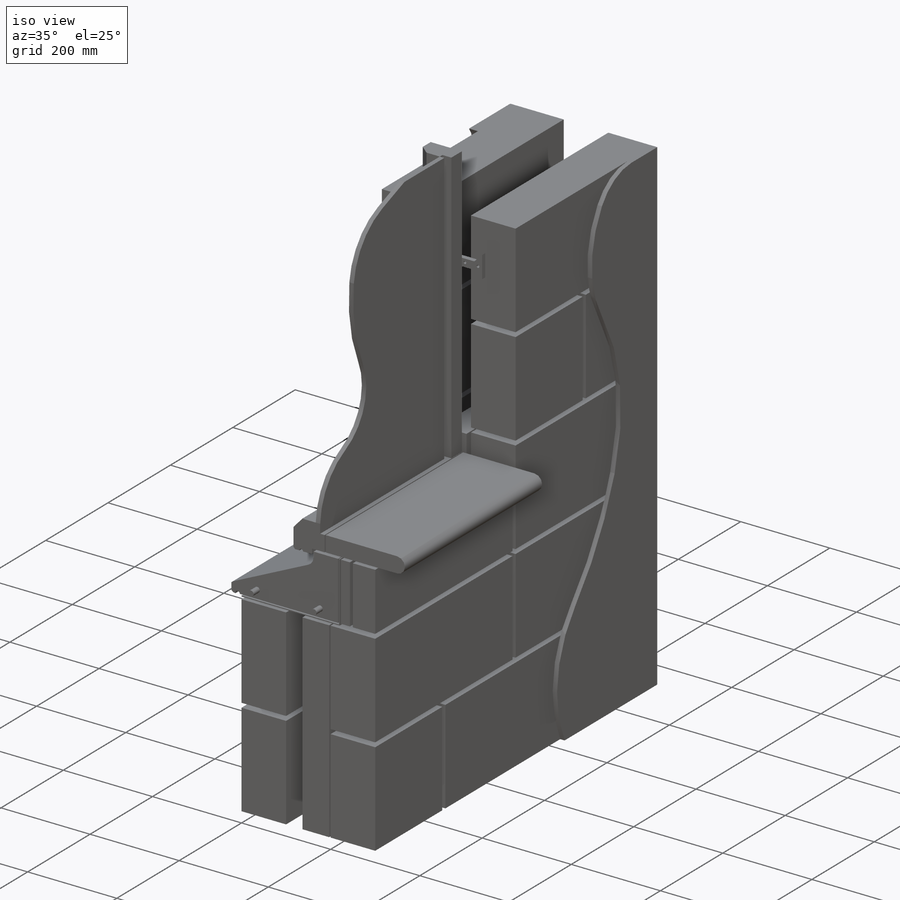
[diagram: iso view]
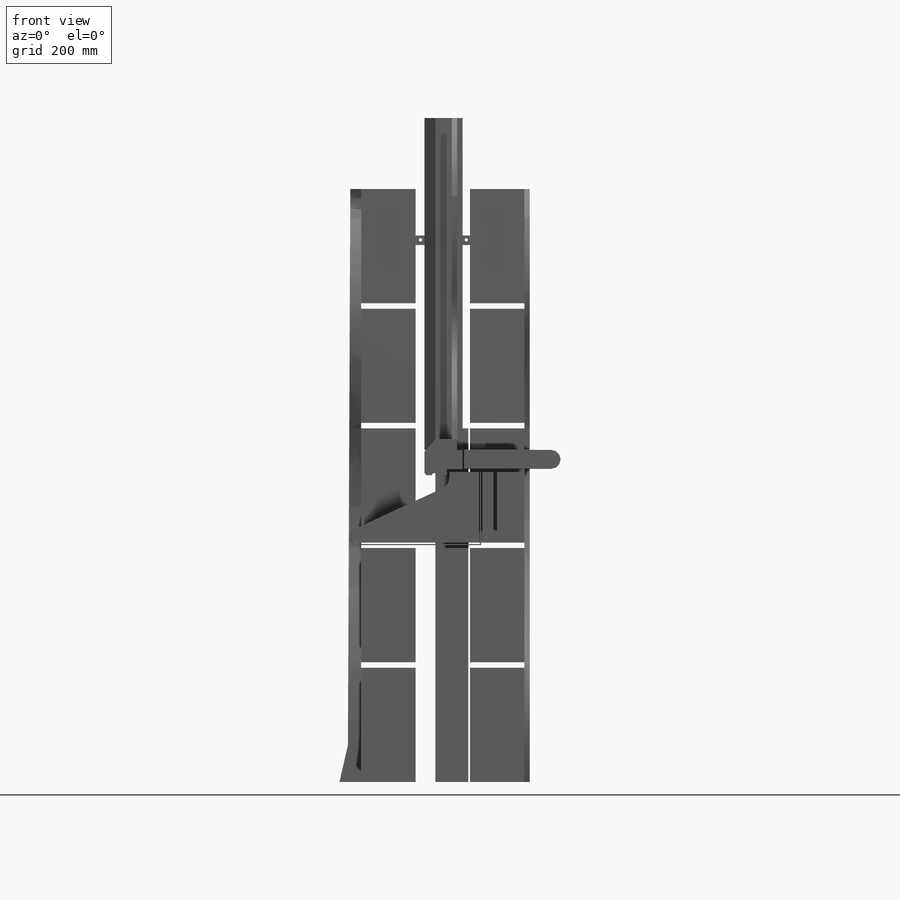
[diagram: front view]
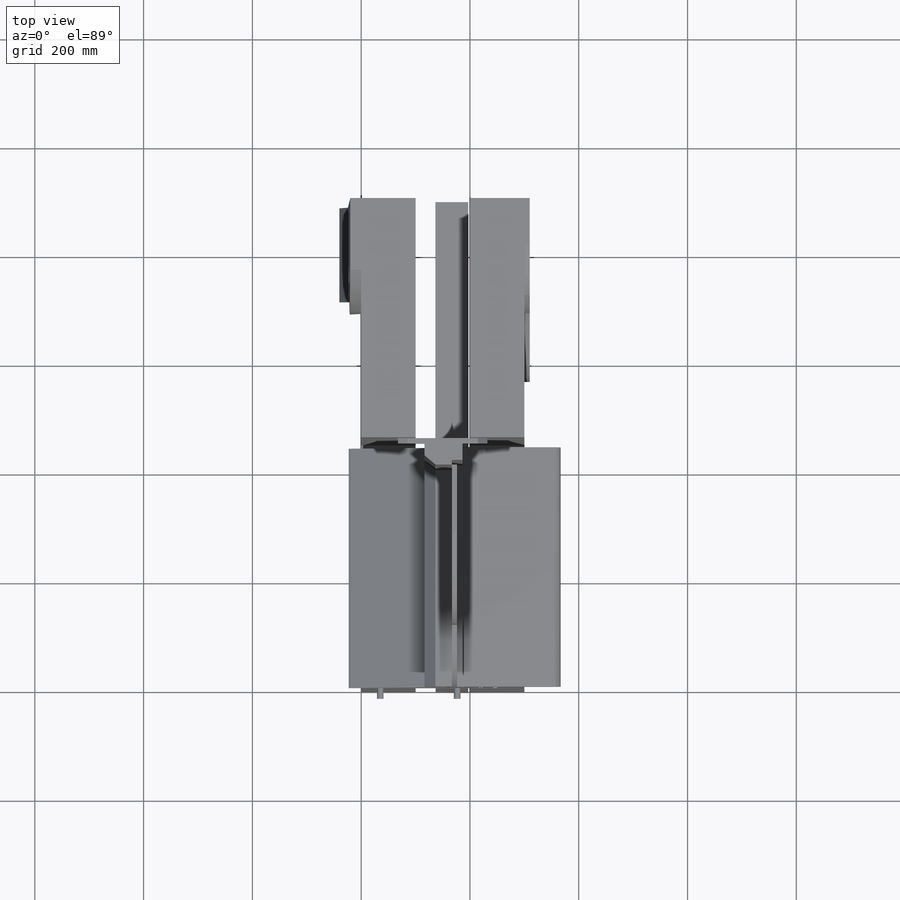
[diagram: top view]
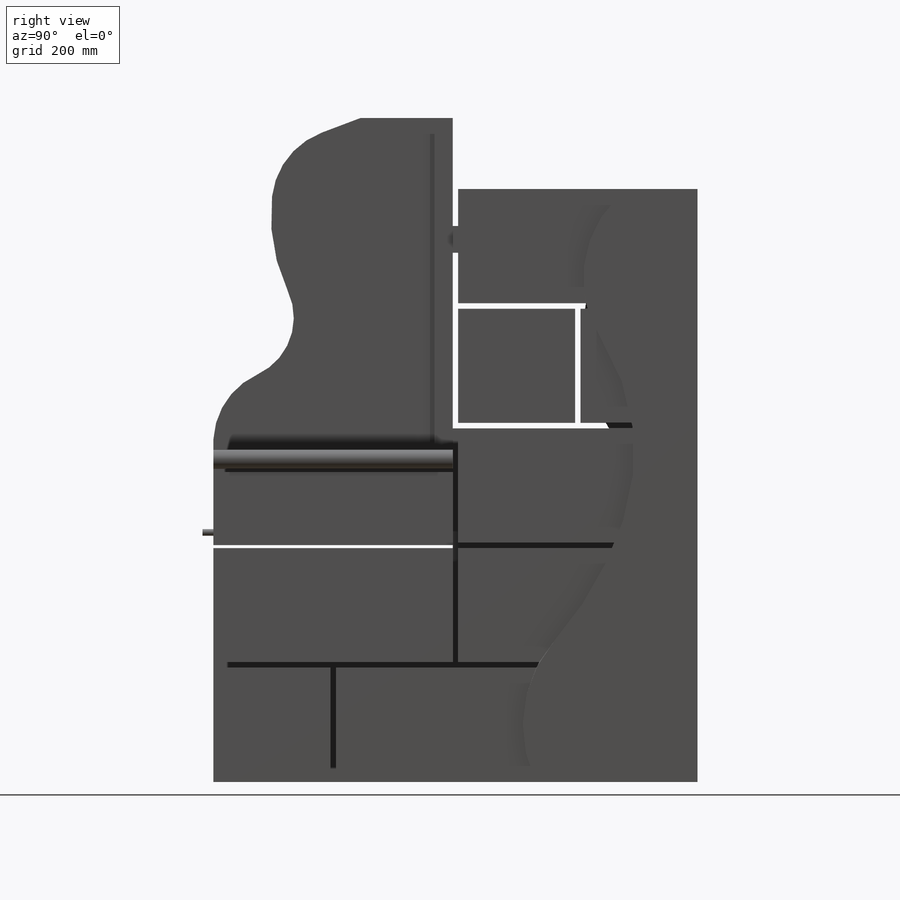
[diagram: right view]
SOLIDWORKS PART (.sldprt)
format: sldprt  version: not decoded by parser v0  size: 900,096 bytes
history: native  units: mm
features: sketch x29, extrude x27, cut_extrude x2, material x1, plane x1 (+15 scaffold rows collapsed)
feature tree (75):
  scaffold x15  (default folders/planes/origin — collapsed)
  material  "Material <not specified>"
  sketch  "Sketch1"  dims[D1=100.0mm D2=210.0mm D3=100.0mm D4=100.0mm]
  extrude  "Extrude1"  Depth=440mm
  sketch  "Sketch2"  dims[D1=100.0mm D2=210.0mm D3=100.0mm D4=100.0mm D5=210.0mm D6=10.0mm D7=10.0mm]
  extrude  "Extrude2"  Depth=215mm
  sketch  "Sketch3"  dims[c1.D1=20.0mm c1.D5=15.0mm c1.D7=10.0mm c1.D4=12.0mm c2.D5=5.0mm c2.D2=130.0mm c2.D3=250.0mm c2.D4=222.0mm c2.D6=20.0mm c2.D8=55.0mm c2.D9=10.0mm c3.D3=~167.091077mm c3.D6=~220.580279mm]
  extrude  "Extrude3"  Depth=440mm
  sketch  "Sketch4"  dims[D10=4.0mm D1=70.0mm D2=50.0mm D3=35.0mm D4=20.0mm D5=20.0mm D6=10.0mm D7=40.0mm D8=30.0mm D9=30.0mm]
  extrude  "Extrude4"  Depth=440mm
  sketch  "Sketch5"  dims[D1=130.0mm D2=20.0mm D3=50.0mm]
  extrude  "Extrude5"  Depth=440mm
  sketch  "Sketch6"  dims[D1=~132.37827mm D2=~220.20227mm]
  extrude  "Extrude6"  Depth=440mm
  sketch  "Sketch7"  dims[D3=17.5mm D1=35.0mm D2=160.0mm]
  extrude  "Extrude7"  Depth=440mm
  sketch  "Sketch8"  dims[D1=12.0mm D2=12.0mm]
  sketch  "Sketch14"  dims[D1=440.0mm D2=210.0mm D3=10.0mm]
  extrude  "Extrude13"  Depth=100mm
  sketch  "Sketch15"
  extrude  "Extrude14"  Depth=100mm
  sketch  "Sketch16"  dims[D1=210.0mm D2=215.0mm D3=10.0mm]
  extrude  "Extrude15"  Depth=100mm
  sketch  "Sketch17"
  extrude  "Extrude16"  Depth=100mm
  sketch  "Sketch18"  dims[D1=440.0mm D2=10.0mm]
  extrude  "Extrude17"  Depth=100mm
  sketch  "Sketch19"
  extrude  "Extrude18"  Depth=100mm
  extrude  "Extrude19"  Depth=20mm
  sketch  "Sketch20"  dims[D1=440.0mm D2=210.0mm D3=10.0mm]
  extrude  "Extrude20"  Depth=100mm
  sketch  "Sketch21"
  extrude  "Extrude21"  Depth=100mm
  sketch  "Sketch24"  dims[D1=~429.832985mm D2=60.0mm]
  extrude  "Extrude23"  Depth=440mm
  sketch  "Sketch25"
  extrude  "Extrude26"  [1 undecoded]
  sketch  "Sketch26"  dims[D1=210.0mm D2=215.0mm D3=215.0mm D4=210.0mm D5=10.0mm D6=10.0mm]
  extrude  "Extrude27"  Depth=100mm
  sketch  "Sketch28"
  extrude  "Extrude29"  Depth=100mm
  sketch  "Sketch29"  dims[D1=210.0mm D2=440.0mm D3=10.0mm]
  extrude  "Extrude30"  Depth=100mm
  sketch  "Sketch30"
  extrude  "Extrude31"  Depth=100mm
  plane  "Plane1"  Offset=0mm
  sketch  "Sketch31"
  extrude  "Extrude32"  Depth=610mm
  sketch  "Sketch32"
  extrude  "Extrude35"  Depth=10mm
  sketch  "Sketch33"
  extrude  "Extrude36"  Depth=40mm
  sketch  "Sketch34"
  cut_extrude  "Cut-Extrude1"  [1 undecoded]
  sketch  "Sketch35"  dims[c1.D1=6.0mm c1.D2=6.0mm c1.D3=6.0mm c1.D4=6.0mm c1.D5=6.0mm c2.D4=~8.945663mm c2.D6=~129.337909mm c2.D7=~17.566456mm c2.D8=~49.186078mm]
  extrude  "Extrude37"  Depth=10mm
  sketch  "Sketch36"
  cut_extrude  "Cut-Extrude3"  [1 undecoded]
  sketch  "Sketch37"
  extrude  "Extrude38"  Depth=10mm
decode coverage: 42 of 58 modeling features carry decoded parameters
note: ~ marks probable driven/reference dimensions
note: 3 parameter values undecoded
summary: no parameter record found for 3 features
note: suppression state not decoded; provenance and decode notes live in map.json
